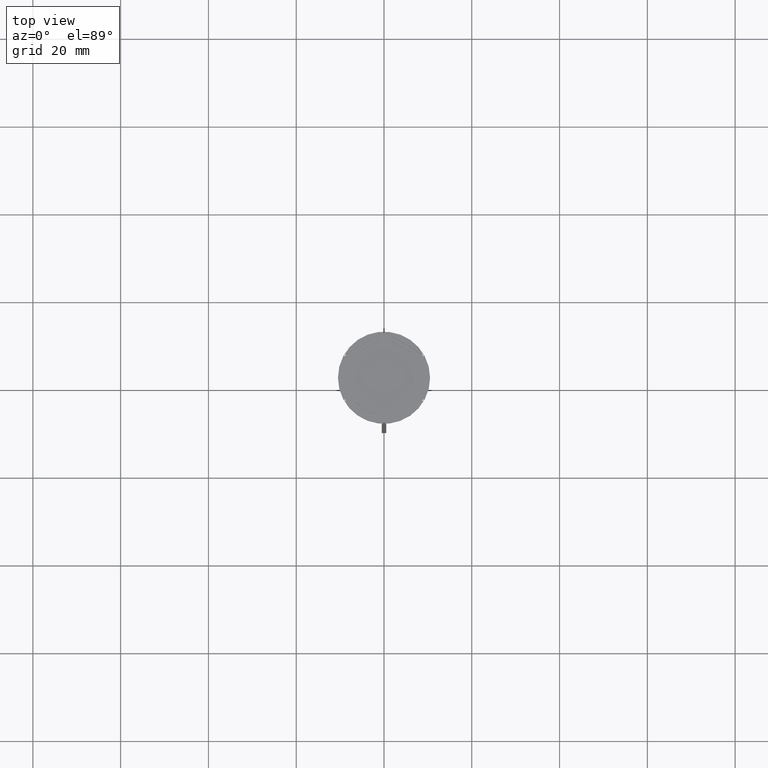
[diagram: clean part render]
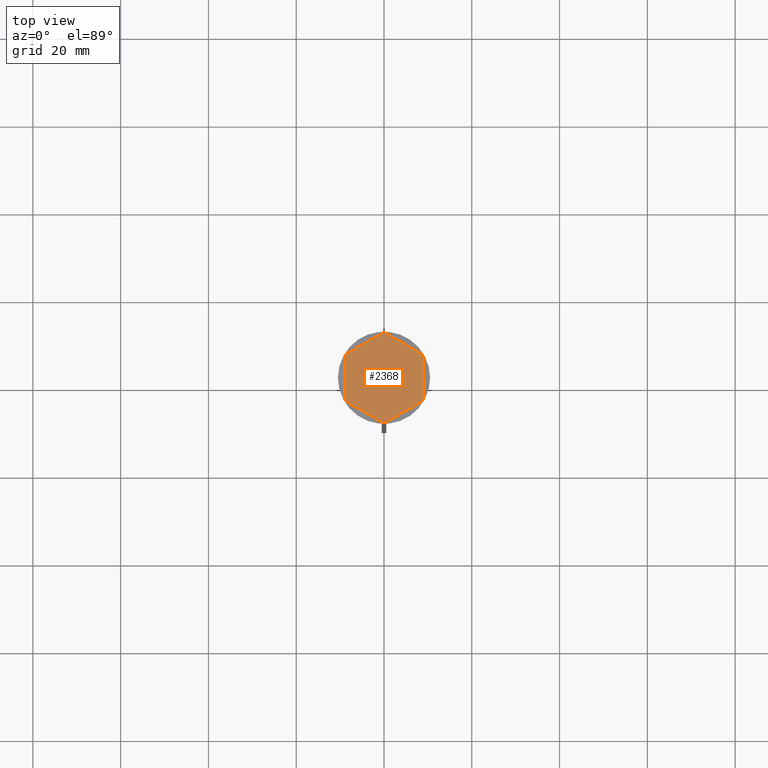
[diagram: same view with one face highlighted and labeled with its STEP entity id]
A machine part, top view. The second image highlights one B-rep face of the part: STEP entity #2368.
In plain terms, the highlighted planar face has unit normal (0, 0, 1).
Its self-contained STEP definition (entity closure, byte-faithful):
#20 = DIRECTION ( 'NONE',  ( -0.000000000000000000, -0.000000000000000000, -1.000000000000000000 ) ) ;
#31 = DIRECTION ( 'NONE',  ( -0.000000000000000000, -0.000000000000000000, -1.000000000000000000 ) ) ;
#48 = ORIENTED_EDGE ( 'NONE', *, *, #704, .F. ) ;
#55 = CARTESIAN_POINT ( 'NONE',  ( -8.000000000000000000, 4.618802153517004072, -1.000000000000000888 ) ) ;
#57 = EDGE_CURVE ( 'NONE', #511, #2103, #203, .T. ) ;
#99 = ORIENTED_EDGE ( 'NONE', *, *, #2030, .T. ) ;
#107 = VECTOR ( 'NONE', #623, 1000.000000000000114 ) ;
#116 = VERTEX_POINT ( 'NONE', #2422 ) ;
#129 = DIRECTION ( 'NONE',  ( -0.000000000000000000, -0.000000000000000000, -1.000000000000000000 ) ) ;
#139 = CARTESIAN_POINT ( 'NONE',  ( 0.000000000000000000, 0.000000000000000000, -1.000000000000000000 ) ) ;
#146 = AXIS2_PLACEMENT_3D ( 'NONE', #1544, #1586, #1160 ) ;
#152 = EDGE_CURVE ( 'NONE', #116, #1880, #2471, .T. ) ;
#171 = CARTESIAN_POINT ( 'NONE',  ( 1.512531407233448366, 8.364343891910017703, -1.000000000000000888 ) ) ;
#172 = ORIENTED_EDGE ( 'NONE', *, *, #639, .F. ) ;
#174 = VERTEX_POINT ( 'NONE', #1217 ) ;
#186 = VERTEX_POINT ( 'NONE', #1055 ) ;
#203 = LINE ( 'NONE', #1803, #568 ) ;
#207 = CARTESIAN_POINT ( 'NONE',  ( -9.000000000000001776, -5.196152422706632912, -1.000000000000000000 ) ) ;
#213 = DIRECTION ( 'NONE',  ( -0.8660254037844387076, -0.4999999999999998335, 0.000000000000000000 ) ) ;
#221 = EDGE_LOOP ( 'NONE', ( #1696, #964, #1760, #2272, #2033, #1750, #1090, #492, #1458, #642, #99, #358 ) ) ;
#229 = AXIS2_PLACEMENT_3D ( 'NONE', #2194, #31, #1812 ) ;
#274 = CARTESIAN_POINT ( 'NONE',  ( 6.487468592766552078, 5.492062568641001619, -1.000000000000000888 ) ) ;
#283 = DIRECTION ( 'NONE',  ( -0.000000000000000000, -0.000000000000000000, -1.000000000000000000 ) ) ;
#299 = CARTESIAN_POINT ( 'NONE',  ( -6.487468592766552078, -5.492062568641001619, -1.000000000000000888 ) ) ;
#308 = DIRECTION ( 'NONE',  ( 1.000000000000000000, 0.000000000000000000, 0.000000000000000000 ) ) ;
#311 = VECTOR ( 'NONE', #615, 1000.000000000000000 ) ;
#343 = CARTESIAN_POINT ( 'NONE',  ( 0.000000000000000000, 0.000000000000000000, -1.000000000000000000 ) ) ;
#358 = ORIENTED_EDGE ( 'NONE', *, *, #2254, .F. ) ;
#374 = EDGE_CURVE ( 'NONE', #1083, #2318, #2350, .T. ) ;
#376 = EDGE_LOOP ( 'NONE', ( #2546, #172 ) ) ;
#382 = LINE ( 'NONE', #1185, #728 ) ;
#388 = VERTEX_POINT ( 'NONE', #171 ) ;
#414 = EDGE_CURVE ( 'NONE', #1975, #1093, #946, .T. ) ;
#419 = CARTESIAN_POINT ( 'NONE',  ( 8.656921938165297092, -5.394228634059953009, -1.000000000000000000 ) ) ;
#426 = EDGE_CURVE ( 'NONE', #2476, #1609, #382, .T. ) ;
#465 = ORIENTED_EDGE ( 'NONE', *, *, #1348, .F. ) ;
#475 = DIRECTION ( 'NONE',  ( 0.000000000000000000, 0.000000000000000000, 1.000000000000000000 ) ) ;
#483 = CARTESIAN_POINT ( 'NONE',  ( 0.000000000000000000, 0.000000000000000000, -1.000000000000000000 ) ) ;
#486 = AXIS2_PLACEMENT_3D ( 'NONE', #343, #129, #2548 ) ;
#491 = EDGE_CURVE ( 'NONE', #2318, #1731, #1439, .T. ) ;
#492 = ORIENTED_EDGE ( 'NONE', *, *, #1167, .F. ) ;
#509 = CARTESIAN_POINT ( 'NONE',  ( 0.000000000000000000, 0.000000000000000000, -1.000000000000000000 ) ) ;
#511 = VERTEX_POINT ( 'NONE', #2384 ) ;
#529 = CIRCLE ( 'NONE', #2395, 8.500000000000000000 ) ;
#536 = DIRECTION ( 'NONE',  ( 0.000000000000000000, 0.000000000000000000, 1.000000000000000000 ) ) ;
#559 = DIRECTION ( 'NONE',  ( 0.000000000000000000, 0.000000000000000000, 1.000000000000000000 ) ) ;
#568 = VECTOR ( 'NONE', #213, 1000.000000000000114 ) ;
#578 = DIRECTION ( 'NONE',  ( 0.000000000000000000, 0.000000000000000000, 1.000000000000000000 ) ) ;
#609 = VECTOR ( 'NONE', #2565, 1000.000000000000000 ) ;
#615 = DIRECTION ( 'NONE',  ( 0.000000000000000000, 1.000000000000000000, 0.000000000000000000 ) ) ;
#623 = DIRECTION ( 'NONE',  ( 0.8660254037844387076, -0.4999999999999997224, 0.000000000000000000 ) ) ;
#627 = EDGE_CURVE ( 'NONE', #2341, #1994, #1990, .T. ) ;
#638 = CARTESIAN_POINT ( 'NONE',  ( -8.656921938165297092, 5.394228634059953009, -1.000000000000000000 ) ) ;
#639 = EDGE_CURVE ( 'NONE', #388, #1939, #2073, .T. ) ;
#642 = ORIENTED_EDGE ( 'NONE', *, *, #152, .F. ) ;
#649 = AXIS2_PLACEMENT_3D ( 'NONE', #139, #578, #1943 ) ;
#650 = DIRECTION ( 'NONE',  ( -0.000000000000000000, -0.000000000000000000, -1.000000000000000000 ) ) ;
#657 = CARTESIAN_POINT ( 'NONE',  ( -9.000000000000001776, -4.799999999999988276, -1.000000000000000000 ) ) ;
#667 = CARTESIAN_POINT ( 'NONE',  ( 9.000000000000001776, 5.196152422706632912, -1.000000000000000000 ) ) ;
#670 = CARTESIAN_POINT ( 'NONE',  ( 0.000000000000000000, 0.000000000000000000, -1.000000000000000000 ) ) ;
#685 = DIRECTION ( 'NONE',  ( 1.000000000000000000, 0.000000000000000000, 0.000000000000000000 ) ) ;
#704 = EDGE_CURVE ( 'NONE', #2103, #511, #2434, .T. ) ;
#713 = CARTESIAN_POINT ( 'NONE',  ( -9.000000000000001776, 4.799999999999988276, -1.000000000000000000 ) ) ;
#728 = VECTOR ( 'NONE', #751, 1000.000000000000114 ) ;
#737 = CIRCLE ( 'NONE', #1456, 8.500000000000000000 ) ;
#738 = CIRCLE ( 'NONE', #1418, 10.19999999999999574 ) ;
#743 = EDGE_LOOP ( 'NONE', ( #48, #2112 ) ) ;
#751 = DIRECTION ( 'NONE',  ( 0.8660254037844384856, 0.5000000000000003331, -0.000000000000000000 ) ) ;
#772 = VECTOR ( 'NONE', #2253, 1000.000000000000114 ) ;
#784 = CARTESIAN_POINT ( 'NONE',  ( 8.000000000000000000, -2.872281323269017417, -1.000000000000000888 ) ) ;
#786 = ORIENTED_EDGE ( 'NONE', *, *, #491, .F. ) ;
#808 = EDGE_CURVE ( 'NONE', #1731, #1083, #737, .T. ) ;
#821 = CARTESIAN_POINT ( 'NONE',  ( 7.999999999999998224, -4.618802153517008513, -1.000000000000000888 ) ) ;
#858 = VECTOR ( 'NONE', #975, 1000.000000000000000 ) ;
#863 = DIRECTION ( 'NONE',  ( 0.000000000000000000, 0.000000000000000000, 1.000000000000000000 ) ) ;
#864 = DIRECTION ( 'NONE',  ( 0.8660254037844385966, 0.5000000000000001110, 0.000000000000000000 ) ) ;
#871 = PLANE ( 'NONE',  #1113 ) ;
#946 = LINE ( 'NONE', #1569, #1579 ) ;
#964 = ORIENTED_EDGE ( 'NONE', *, *, #2540, .F. ) ;
#965 = DIRECTION ( 'NONE',  ( 1.000000000000000000, 0.000000000000000000, 0.000000000000000000 ) ) ;
#975 = DIRECTION ( 'NONE',  ( -0.8660254037844385966, -0.5000000000000001110, 0.000000000000000000 ) ) ;
#995 = ORIENTED_EDGE ( 'NONE', *, *, #808, .F. ) ;
#999 = ORIENTED_EDGE ( 'NONE', *, *, #374, .F. ) ;
#1019 = EDGE_LOOP ( 'NONE', ( #465, #1967 ) ) ;
#1034 = CIRCLE ( 'NONE', #2477, 10.19999999999999574 ) ;
#1048 = VERTEX_POINT ( 'NONE', #1807 ) ;
#1055 = CARTESIAN_POINT ( 'NONE',  ( 8.000000000000000000, 2.872281323269014752, -1.000000000000000888 ) ) ;
#1073 = AXIS2_PLACEMENT_3D ( 'NONE', #1448, #650, #2408 ) ;
#1077 = FACE_BOUND ( 'NONE', #1115, .T. ) ;
#1083 = VERTEX_POINT ( 'NONE', #1098 ) ;
#1089 = CARTESIAN_POINT ( 'NONE',  ( -8.656921938165295316, -5.394228634059957450, -1.000000000000000000 ) ) ;
#1090 = ORIENTED_EDGE ( 'NONE', *, *, #414, .T. ) ;
#1092 = CARTESIAN_POINT ( 'NONE',  ( 0.3430780618347050170, 10.19422863405994306, -1.000000000000000000 ) ) ;
#1093 = VERTEX_POINT ( 'NONE', #657 ) ;
#1098 = CARTESIAN_POINT ( 'NONE',  ( -8.500000000000000000, 0.000000000000000000, -1.000000000000000000 ) ) ;
#1099 = FACE_BOUND ( 'NONE', #1330, .T. ) ;
#1113 = AXIS2_PLACEMENT_3D ( 'NONE', #670, #2085, #2046 ) ;
#1115 = EDGE_LOOP ( 'NONE', ( #1256, #2332 ) ) ;
#1136 = EDGE_LOOP ( 'NONE', ( #2348, #2460 ) ) ;
#1149 = CARTESIAN_POINT ( 'NONE',  ( 8.656921938165297092, 5.394228634059953897, -1.000000000000000000 ) ) ;
#1160 = DIRECTION ( 'NONE',  ( 1.000000000000000000, 0.000000000000000000, 0.000000000000000000 ) ) ;
#1167 = EDGE_CURVE ( 'NONE', #2410, #1093, #1034, .T. ) ;
#1185 = CARTESIAN_POINT ( 'NONE',  ( 8.673617379884035472E-16, 9.237604307034013473, -1.000000000000000888 ) ) ;
#1217 = CARTESIAN_POINT ( 'NONE',  ( 9.000000000000001776, -4.799999999999988276, -1.000000000000000000 ) ) ;
#1225 = CARTESIAN_POINT ( 'NONE',  ( -0.3430780618347024080, -10.19422863405994306, -1.000000000000000000 ) ) ;
#1234 = VERTEX_POINT ( 'NONE', #1149 ) ;
#1237 = VECTOR ( 'NONE', #864, 1000.000000000000000 ) ;
#1250 = CARTESIAN_POINT ( 'NONE',  ( -8.000000000000000000, -2.872281323269016085, -1.000000000000000888 ) ) ;
#1256 = ORIENTED_EDGE ( 'NONE', *, *, #1960, .F. ) ;
#1291 = CIRCLE ( 'NONE', #2189, 8.500000000000000000 ) ;
#1305 = FACE_BOUND ( 'NONE', #743, .T. ) ;
#1310 = EDGE_CURVE ( 'NONE', #1686, #1048, #1792, .T. ) ;
#1319 = CARTESIAN_POINT ( 'NONE',  ( 8.000000000000000000, 4.618802153517006737, -1.000000000000000888 ) ) ;
#1322 = VERTEX_POINT ( 'NONE', #2518 ) ;
#1330 = EDGE_LOOP ( 'NONE', ( #995, #786, #999 ) ) ;
#1332 = VECTOR ( 'NONE', #1678, 1000.000000000000114 ) ;
#1333 = CARTESIAN_POINT ( 'NONE',  ( 2.607697573705103160E-15, -10.39230484541326405, -1.000000000000000000 ) ) ;
#1342 = CARTESIAN_POINT ( 'NONE',  ( -6.487468592766553854, 5.492062568640999842, -1.000000000000000888 ) ) ;
#1348 = EDGE_CURVE ( 'NONE', #1609, #2476, #529, .T. ) ;
#1354 = LINE ( 'NONE', #2134, #609 ) ;
#1380 = EDGE_CURVE ( 'NONE', #186, #2536, #1391, .T. ) ;
#1391 = LINE ( 'NONE', #821, #1543 ) ;
#1405 = CARTESIAN_POINT ( 'NONE',  ( 0.000000000000000000, 0.000000000000000000, -1.000000000000000000 ) ) ;
#1418 = AXIS2_PLACEMENT_3D ( 'NONE', #1551, #1566, #2359 ) ;
#1439 = LINE ( 'NONE', #55, #311 ) ;
#1448 = CARTESIAN_POINT ( 'NONE',  ( 0.000000000000000000, 0.000000000000000000, -1.000000000000000000 ) ) ;
#1456 = AXIS2_PLACEMENT_3D ( 'NONE', #1737, #536, #965 ) ;
#1458 = ORIENTED_EDGE ( 'NONE', *, *, #2255, .T. ) ;
#1462 = DIRECTION ( 'NONE',  ( 1.000000000000000000, 8.881784197001252323E-16, 0.000000000000000000 ) ) ;
#1471 = CARTESIAN_POINT ( 'NONE',  ( -0.3430780618347059052, 10.19422863405994306, -1.000000000000000000 ) ) ;
#1541 = CARTESIAN_POINT ( 'NONE',  ( 1.512531407233452363, -8.364343891910017703, -1.000000000000000888 ) ) ;
#1543 = VECTOR ( 'NONE', #2181, 1000.000000000000000 ) ;
#1544 = CARTESIAN_POINT ( 'NONE',  ( 0.000000000000000000, 0.000000000000000000, -1.000000000000000000 ) ) ;
#1545 = VERTEX_POINT ( 'NONE', #638 ) ;
#1551 = CARTESIAN_POINT ( 'NONE',  ( 0.000000000000000000, 0.000000000000000000, -1.000000000000000000 ) ) ;
#1557 = EDGE_CURVE ( 'NONE', #1234, #1994, #2067, .T. ) ;
#1566 = DIRECTION ( 'NONE',  ( -0.000000000000000000, -0.000000000000000000, -1.000000000000000000 ) ) ;
#1569 = CARTESIAN_POINT ( 'NONE',  ( -9.000000000000001776, 5.196152422706632024, -1.000000000000000000 ) ) ;
#1573 = DIRECTION ( 'NONE',  ( 0.000000000000000000, 0.000000000000000000, 1.000000000000000000 ) ) ;
#1575 = AXIS2_PLACEMENT_3D ( 'NONE', #1405, #20, #1462 ) ;
#1579 = VECTOR ( 'NONE', #2528, 1000.000000000000000 ) ;
#1581 = CIRCLE ( 'NONE', #1575, 10.19999999999999574 ) ;
#1586 = DIRECTION ( 'NONE',  ( 0.000000000000000000, 0.000000000000000000, 1.000000000000000000 ) ) ;
#1593 = VECTOR ( 'NONE', #2052, 1000.000000000000227 ) ;
#1609 = VERTEX_POINT ( 'NONE', #1709 ) ;
#1656 = DIRECTION ( 'NONE',  ( 1.000000000000000000, 0.000000000000000000, 0.000000000000000000 ) ) ;
#1678 = DIRECTION ( 'NONE',  ( 0.8660254037844385966, -0.4999999999999999445, 0.000000000000000000 ) ) ;
#1686 = VERTEX_POINT ( 'NONE', #299 ) ;
#1688 = FACE_OUTER_BOUND ( 'NONE', #221, .T. ) ;
#1696 = ORIENTED_EDGE ( 'NONE', *, *, #2522, .T. ) ;
#1700 = FACE_BOUND ( 'NONE', #376, .T. ) ;
#1709 = CARTESIAN_POINT ( 'NONE',  ( -1.512531407233451475, 8.364343891910017703, -1.000000000000000888 ) ) ;
#1731 = VERTEX_POINT ( 'NONE', #1954 ) ;
#1737 = CARTESIAN_POINT ( 'NONE',  ( 0.000000000000000000, 0.000000000000000000, -1.000000000000000000 ) ) ;
#1750 = ORIENTED_EDGE ( 'NONE', *, *, #2083, .F. ) ;
#1760 = ORIENTED_EDGE ( 'NONE', *, *, #1557, .T. ) ;
#1792 = CIRCLE ( 'NONE', #649, 8.500000000000000000 ) ;
#1803 = CARTESIAN_POINT ( 'NONE',  ( -8.673617379884035472E-16, -9.237604307034013473, -1.000000000000000888 ) ) ;
#1807 = CARTESIAN_POINT ( 'NONE',  ( -1.512531407233448366, -8.364343891910017703, -1.000000000000000888 ) ) ;
#1812 = DIRECTION ( 'NONE',  ( 1.000000000000000000, 0.000000000000000000, 0.000000000000000000 ) ) ;
#1876 = CARTESIAN_POINT ( 'NONE',  ( -8.000000000000000000, -4.618802153517006737, -1.000000000000000888 ) ) ;
#1880 = VERTEX_POINT ( 'NONE', #1225 ) ;
#1899 = LINE ( 'NONE', #1876, #772 ) ;
#1906 = AXIS2_PLACEMENT_3D ( 'NONE', #483, #863, #685 ) ;
#1927 = EDGE_CURVE ( 'NONE', #1048, #1686, #1899, .T. ) ;
#1932 = CARTESIAN_POINT ( 'NONE',  ( 0.000000000000000000, 10.39230484541326582, -1.000000000000000000 ) ) ;
#1939 = VERTEX_POINT ( 'NONE', #274 ) ;
#1943 = DIRECTION ( 'NONE',  ( 1.000000000000000000, 0.000000000000000000, 0.000000000000000000 ) ) ;
#1954 = CARTESIAN_POINT ( 'NONE',  ( -8.000000000000000000, 2.872281323269016085, -1.000000000000000888 ) ) ;
#1958 = DIRECTION ( 'NONE',  ( 1.000000000000000000, 0.000000000000000000, 0.000000000000000000 ) ) ;
#1960 = EDGE_CURVE ( 'NONE', #2536, #186, #2269, .T. ) ;
#1967 = ORIENTED_EDGE ( 'NONE', *, *, #426, .F. ) ;
#1975 = VERTEX_POINT ( 'NONE', #713 ) ;
#1990 = CIRCLE ( 'NONE', #1073, 10.19999999999999574 ) ;
#1994 = VERTEX_POINT ( 'NONE', #1092 ) ;
#2030 = EDGE_CURVE ( 'NONE', #116, #2258, #2301, .T. ) ;
#2033 = ORIENTED_EDGE ( 'NONE', *, *, #2455, .T. ) ;
#2046 = DIRECTION ( 'NONE',  ( 1.000000000000000000, 0.000000000000000000, -0.000000000000000000 ) ) ;
#2052 = DIRECTION ( 'NONE',  ( -0.8660254037844385966, 0.5000000000000000000, 0.000000000000000000 ) ) ;
#2067 = LINE ( 'NONE', #667, #1593 ) ;
#2073 = LINE ( 'NONE', #1319, #1332 ) ;
#2083 = EDGE_CURVE ( 'NONE', #1975, #1545, #738, .T. ) ;
#2085 = DIRECTION ( 'NONE',  ( 0.000000000000000000, 0.000000000000000000, 1.000000000000000000 ) ) ;
#2103 = VERTEX_POINT ( 'NONE', #1541 ) ;
#2112 = ORIENTED_EDGE ( 'NONE', *, *, #57, .F. ) ;
#2134 = CARTESIAN_POINT ( 'NONE',  ( 9.000000000000001776, -5.196152422706632024, -1.000000000000000000 ) ) ;
#2160 = CARTESIAN_POINT ( 'NONE',  ( 0.000000000000000000, 0.000000000000000000, -1.000000000000000000 ) ) ;
#2181 = DIRECTION ( 'NONE',  ( -1.877893248421449036E-16, -1.000000000000000000, 0.000000000000000000 ) ) ;
#2189 = AXIS2_PLACEMENT_3D ( 'NONE', #2160, #1573, #2314 ) ;
#2194 = CARTESIAN_POINT ( 'NONE',  ( 0.000000000000000000, 0.000000000000000000, -1.000000000000000000 ) ) ;
#2239 = CARTESIAN_POINT ( 'NONE',  ( 0.000000000000000000, 0.000000000000000000, -1.000000000000000000 ) ) ;
#2251 = FACE_BOUND ( 'NONE', #1019, .T. ) ;
#2253 = DIRECTION ( 'NONE',  ( -0.8660254037844385966, 0.4999999999999999445, 0.000000000000000000 ) ) ;
#2254 = EDGE_CURVE ( 'NONE', #174, #2258, #1581, .T. ) ;
#2255 = EDGE_CURVE ( 'NONE', #2410, #1880, #2418, .T. ) ;
#2258 = VERTEX_POINT ( 'NONE', #419 ) ;
#2269 = CIRCLE ( 'NONE', #2355, 8.500000000000000000 ) ;
#2272 = ORIENTED_EDGE ( 'NONE', *, *, #627, .F. ) ;
#2301 = LINE ( 'NONE', #1333, #1237 ) ;
#2314 = DIRECTION ( 'NONE',  ( 1.000000000000000000, 0.000000000000000000, 0.000000000000000000 ) ) ;
#2318 = VERTEX_POINT ( 'NONE', #1250 ) ;
#2332 = ORIENTED_EDGE ( 'NONE', *, *, #1380, .F. ) ;
#2339 = CARTESIAN_POINT ( 'NONE',  ( 0.000000000000000000, 0.000000000000000000, -1.000000000000000000 ) ) ;
#2340 = LINE ( 'NONE', #1932, #858 ) ;
#2341 = VERTEX_POINT ( 'NONE', #1471 ) ;
#2348 = ORIENTED_EDGE ( 'NONE', *, *, #1310, .F. ) ;
#2350 = CIRCLE ( 'NONE', #146, 8.500000000000000000 ) ;
#2355 = AXIS2_PLACEMENT_3D ( 'NONE', #509, #475, #308 ) ;
#2359 = DIRECTION ( 'NONE',  ( 1.000000000000000000, 0.000000000000000000, 0.000000000000000000 ) ) ;
#2368 = ADVANCED_FACE ( 'NONE', ( #1700, #1077, #1305, #2454, #1099, #2251, #1688 ), #871, .T. ) ;
#2384 = CARTESIAN_POINT ( 'NONE',  ( 6.487468592766547637, -5.492062568641006060, -1.000000000000000888 ) ) ;
#2394 = CIRCLE ( 'NONE', #486, 10.19999999999999574 ) ;
#2395 = AXIS2_PLACEMENT_3D ( 'NONE', #2339, #559, #1958 ) ;
#2408 = DIRECTION ( 'NONE',  ( 1.000000000000000000, 1.598721155460225418E-14, 0.000000000000000000 ) ) ;
#2410 = VERTEX_POINT ( 'NONE', #1089 ) ;
#2418 = LINE ( 'NONE', #207, #107 ) ;
#2422 = CARTESIAN_POINT ( 'NONE',  ( 0.3430780618347059052, -10.19422863405994306, -1.000000000000000000 ) ) ;
#2434 = CIRCLE ( 'NONE', #1906, 8.500000000000000000 ) ;
#2454 = FACE_BOUND ( 'NONE', #1136, .T. ) ;
#2455 = EDGE_CURVE ( 'NONE', #2341, #1545, #2340, .T. ) ;
#2460 = ORIENTED_EDGE ( 'NONE', *, *, #1927, .F. ) ;
#2469 = EDGE_CURVE ( 'NONE', #1939, #388, #1291, .T. ) ;
#2471 = CIRCLE ( 'NONE', #229, 10.19999999999999574 ) ;
#2476 = VERTEX_POINT ( 'NONE', #1342 ) ;
#2477 = AXIS2_PLACEMENT_3D ( 'NONE', #2239, #283, #1656 ) ;
#2518 = CARTESIAN_POINT ( 'NONE',  ( 9.000000000000001776, 4.799999999999988276, -1.000000000000000000 ) ) ;
#2522 = EDGE_CURVE ( 'NONE', #174, #1322, #1354, .T. ) ;
#2528 = DIRECTION ( 'NONE',  ( 0.000000000000000000, -1.000000000000000000, 0.000000000000000000 ) ) ;
#2536 = VERTEX_POINT ( 'NONE', #784 ) ;
#2540 = EDGE_CURVE ( 'NONE', #1234, #1322, #2394, .T. ) ;
#2546 = ORIENTED_EDGE ( 'NONE', *, *, #2469, .F. ) ;
#2548 = DIRECTION ( 'NONE',  ( 1.000000000000000000, 0.000000000000000000, 0.000000000000000000 ) ) ;
#2565 = DIRECTION ( 'NONE',  ( 0.000000000000000000, 1.000000000000000000, 0.000000000000000000 ) ) ;